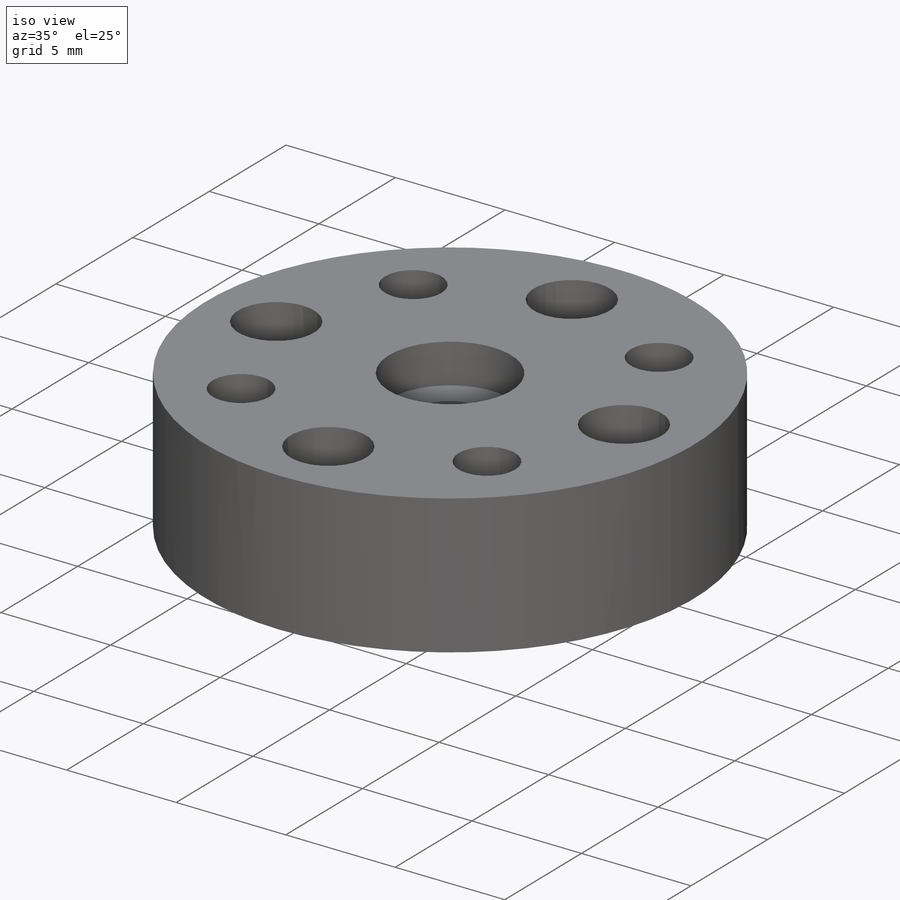
[diagram: iso view]
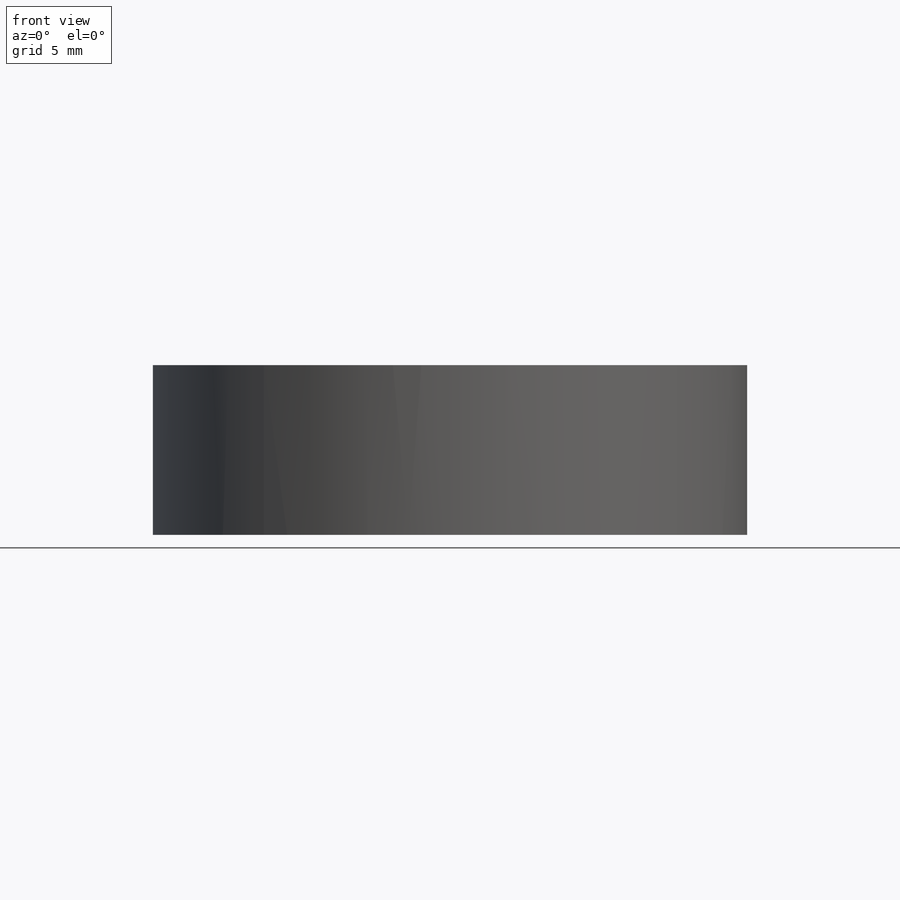
[diagram: front view]
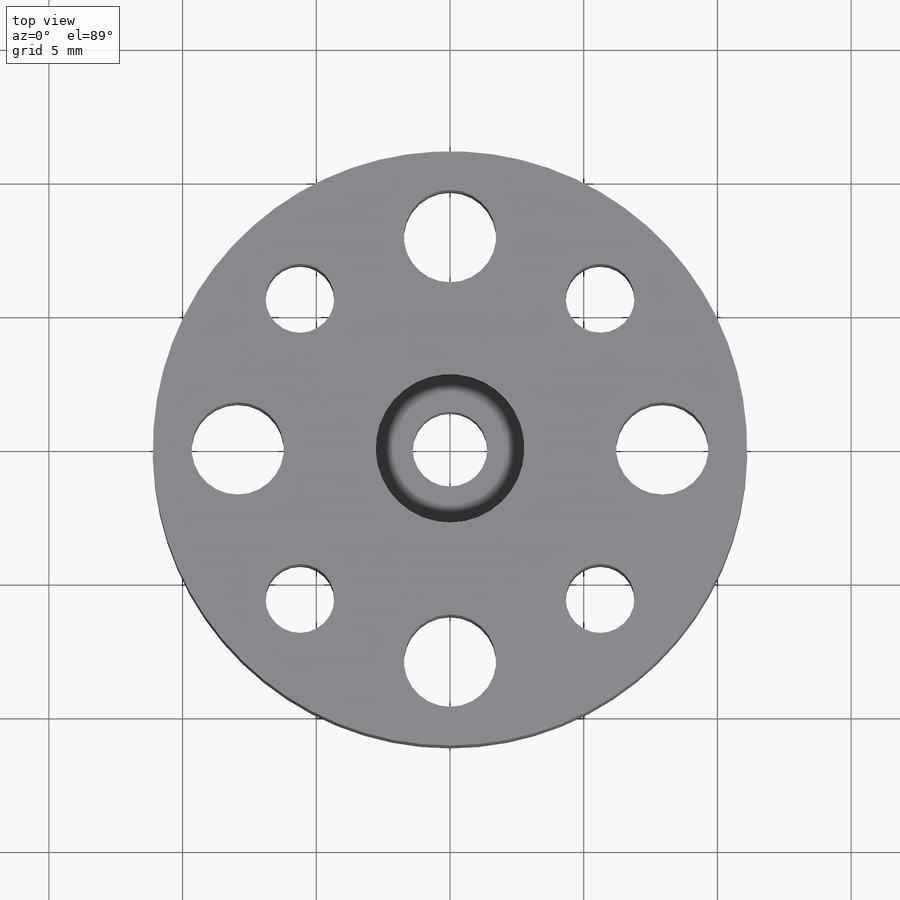
[diagram: top view]
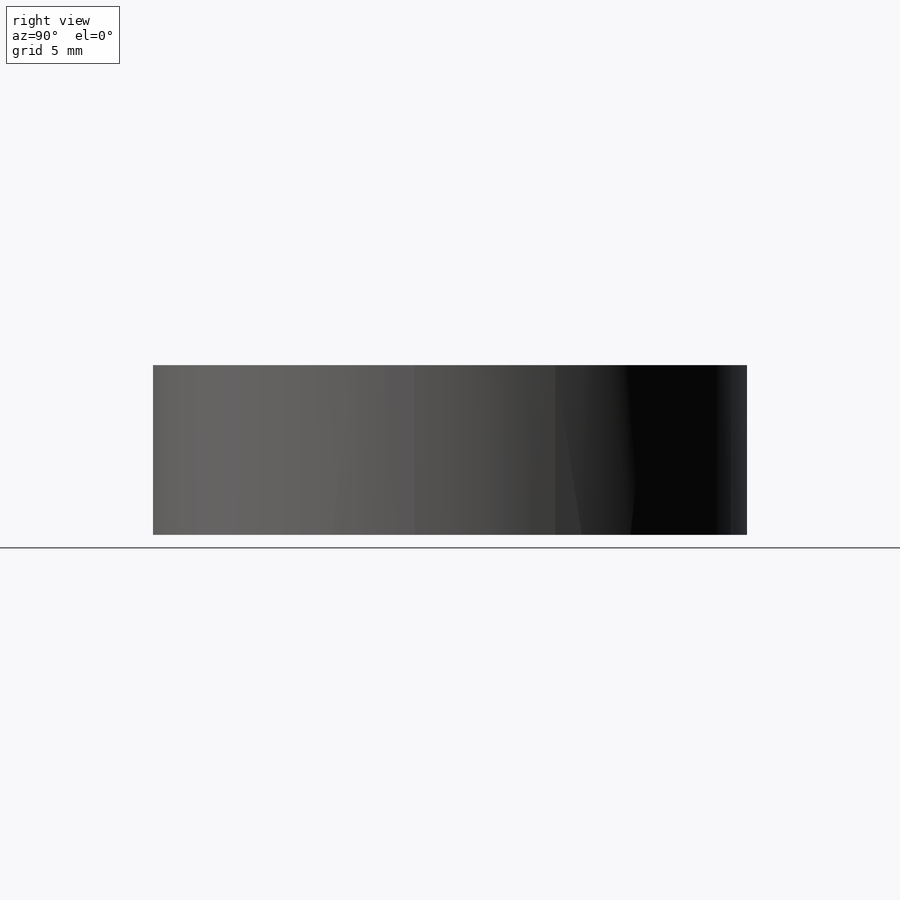
[diagram: right view]
SOLIDWORKS PART (.sldprt)
format: sldprt  version: not decoded by parser v0  size: 278,528 bytes
history: native  units: mm
features: sketch x10, hole x3, material x1, extrude x1 (+17 scaffold rows collapsed)
feature tree (32):
  scaffold x17  (default folders/planes/origin — collapsed)
  material  "Matériau <non spécifié>"
  sketch  "Sketch1"  dims[D1=22.225mm]
  extrude  "Extrude1"  Depth=6.35mm
  sketch  "Esquisse1"  dims[D1=15.875mm D2=15.875mm D3=7.9375mm D4=7.9375mm]
  hole  "Dégagement #51"  Diameter=3.4544mm Depth=6.35mm
  sketch  "Esquisse3"
  sketch  "Esquisse2"  dims[hole-wizard template sketch: 59 standard entries collapsed; hole parameters kept: c18.Diamètre du perçage jusqu'au prochain=3.4544mm c18.Profondeur du perçage jusqu'au prochain=6.35mm]
  sketch  "Esquisse5"  dims[D1=7.9375mm D2=7.9375mm D3=7.9375mm D4=7.9375mm]
  hole  "Trou pour taraudage pour trou taraudé #5-401"  Diameter=2.5781mm Depth=6.35mm
  sketch  "Esquisse7"
  sketch  "Esquisse6"  dims[hole-wizard template sketch: 59 standard entries collapsed; hole parameters kept: c18.Diamètre du perçage jusqu'au prochain=2.5781mm c18.Profondeur du perçage jusqu'au prochain=6.35mm]
  hole  "Chambrage pour vis à tête ronde bombée #31"  Diameter=2.794mm Depth=6.35mm
  sketch  "Esquisse9"
  sketch  "Esquisse8"  dims[hole-wizard template sketch: 41 standard entries collapsed; hole parameters kept: c12.Diamètre du perçage jusqu'au prochain=2.794mm c12.Profondeur du perçage jusqu'au prochain=6.35mm c12.Diamètre du chambrage=~5.55752mm c12.Profondeur du chambrage=1.8034mm]
  sketch  "Esquisse10"
decode coverage: 10 of 14 modeling features carry decoded parameters
note: ~ marks probable driven/reference dimensions
note: suppression state not decoded; provenance and decode notes live in map.json
